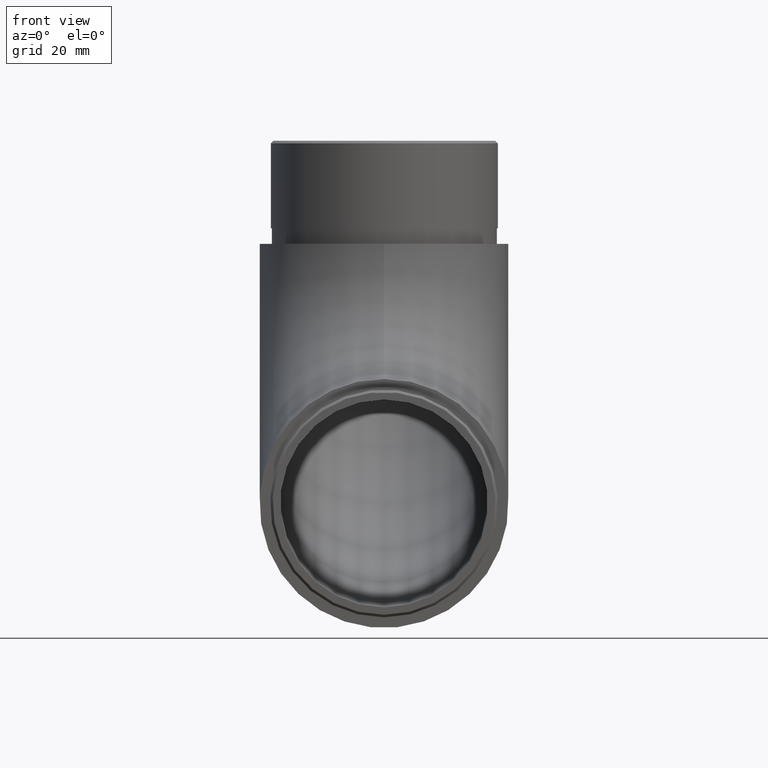
[diagram: clean part render]
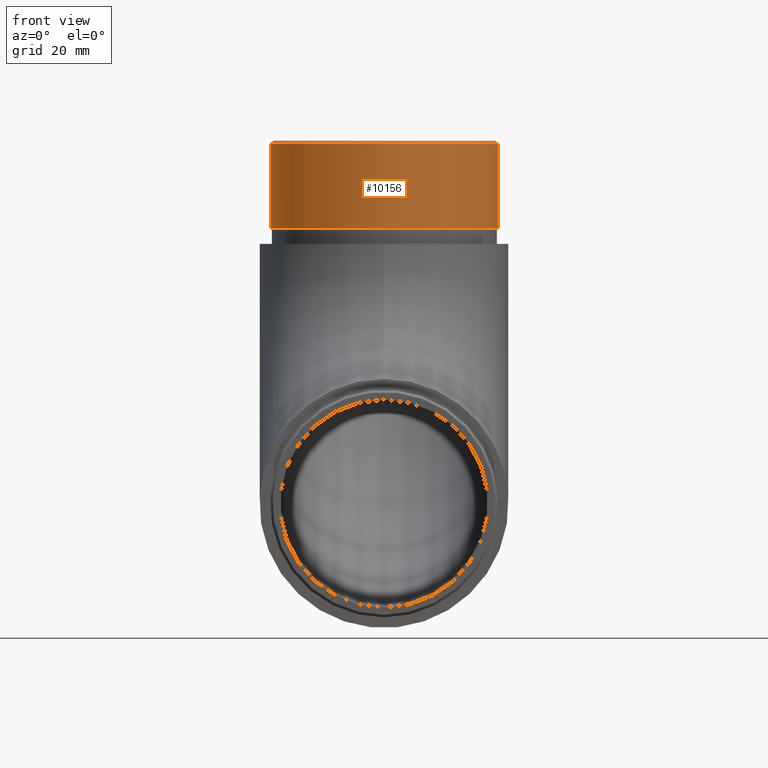
[diagram: same view with one face highlighted and labeled with its STEP entity id]
A machine part, front view. The second image highlights one B-rep face of the part: STEP entity #10156.
In plain terms, the highlighted cylindrical surface (bore or boss wall) has radius 22.1 mm, axis along (-0, -0, -1).
Its self-contained STEP definition (entity closure, byte-faithful):
#215 = CARTESIAN_POINT ( 'NONE',  ( 0.0000000000000000000, 50.34999999999998000, 77.50000000000000000 ) ) ;
#654 = AXIS2_PLACEMENT_3D ( 'NONE', #215, #6561, #10283 ) ;
#804 = AXIS2_PLACEMENT_3D ( 'NONE', #4648, #2907, #3757 ) ;
#1454 = DIRECTION ( 'NONE',  ( -0.0000000000000000000, -0.0000000000000000000, -1.000000000000000000 ) ) ;
#1744 = FACE_OUTER_BOUND ( 'NONE', #9344, .T. ) ;
#2586 = ORIENTED_EDGE ( 'NONE', *, *, #11621, .T. ) ;
#2849 = VERTEX_POINT ( 'NONE', #8695 ) ;
#2907 = DIRECTION ( 'NONE',  ( 0.0000000000000000000, 0.0000000000000000000, -1.000000000000000000 ) ) ;
#3566 = CIRCLE ( 'NONE', #654, 22.10000000000000100 ) ;
#3757 = DIRECTION ( 'NONE',  ( 1.000000000000000000, 0.0000000000000000000, 0.0000000000000000000 ) ) ;
#4227 = CARTESIAN_POINT ( 'NONE',  ( 0.0000000000000000000, 50.34999999999998000, 94.50000000000000000 ) ) ;
#4294 = VERTEX_POINT ( 'NONE', #5112 ) ;
#4648 = CARTESIAN_POINT ( 'NONE',  ( 0.0000000000000000000, 50.34999999999998000, 94.00000000000000000 ) ) ;
#4836 = EDGE_LOOP ( 'NONE', ( #2586 ) ) ;
#5112 = CARTESIAN_POINT ( 'NONE',  ( 22.10000000000000100, 50.34999999999998000, 77.50000000000000000 ) ) ;
#5773 = EDGE_CURVE ( 'NONE', #2849, #2849, #11230, .T. ) ;
#6243 = AXIS2_PLACEMENT_3D ( 'NONE', #4227, #1454, #8042 ) ;
#6561 = DIRECTION ( 'NONE',  ( 0.0000000000000000000, 0.0000000000000000000, 1.000000000000000000 ) ) ;
#8042 = DIRECTION ( 'NONE',  ( -1.000000000000000000, 0.0000000000000000000, 0.0000000000000000000 ) ) ;
#8470 = CYLINDRICAL_SURFACE ( 'NONE', #6243, 22.10000000000000100 ) ;
#8695 = CARTESIAN_POINT ( 'NONE',  ( 22.10000000000000100, 50.34999999999998000, 94.00000000000000000 ) ) ;
#9344 = EDGE_LOOP ( 'NONE', ( #10979 ) ) ;
#10156 = ADVANCED_FACE ( 'NONE', ( #1744, #11323 ), #8470, .T. ) ;
#10283 = DIRECTION ( 'NONE',  ( 1.000000000000000000, 0.0000000000000000000, 0.0000000000000000000 ) ) ;
#10979 = ORIENTED_EDGE ( 'NONE', *, *, #5773, .T. ) ;
#11230 = CIRCLE ( 'NONE', #804, 22.10000000000000100 ) ;
#11323 = FACE_OUTER_BOUND ( 'NONE', #4836, .T. ) ;
#11621 = EDGE_CURVE ( 'NONE', #4294, #4294, #3566, .T. ) ;